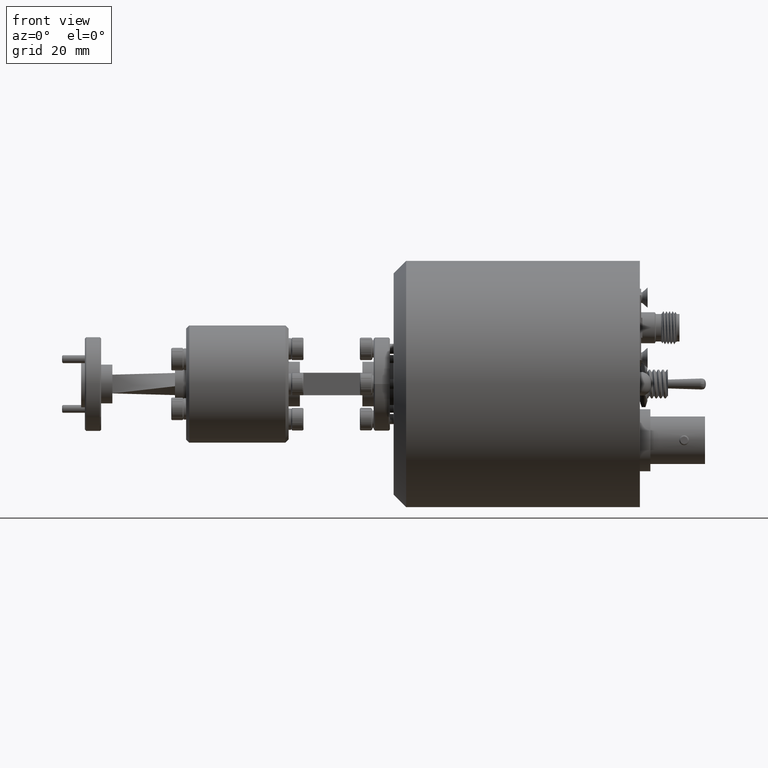
[diagram: clean part render]
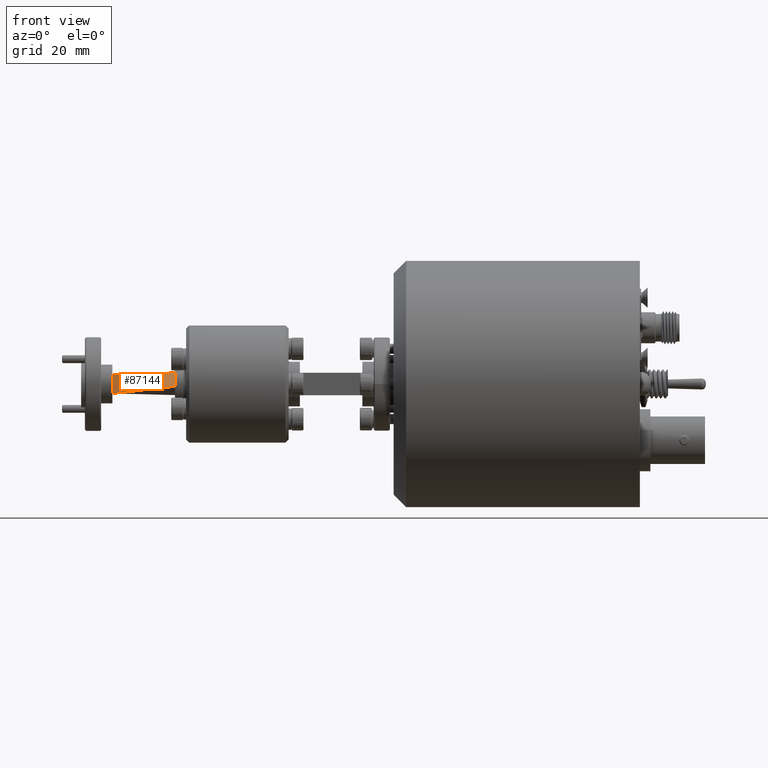
[diagram: same view with one face highlighted and labeled with its STEP entity id]
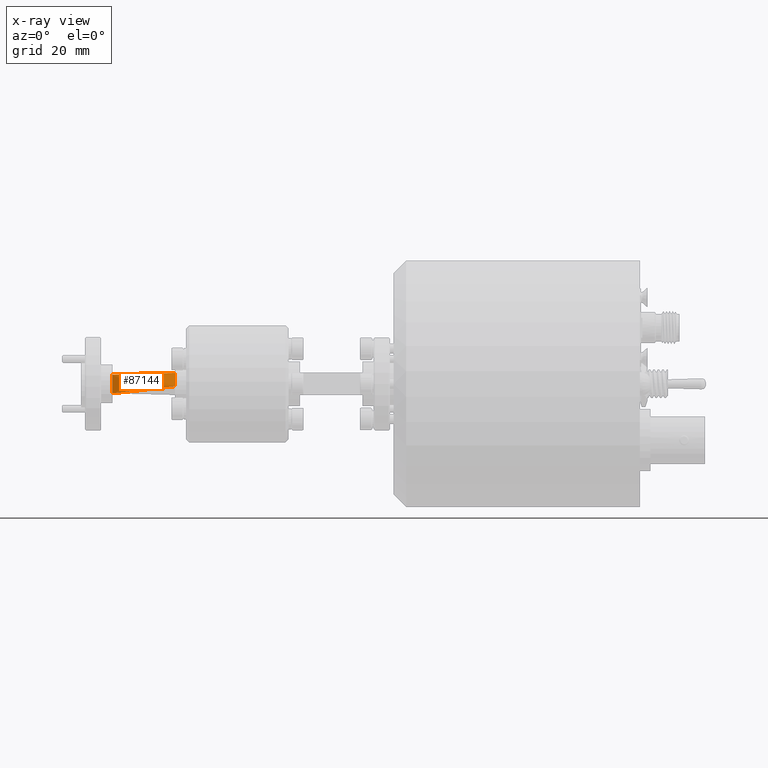
[diagram: x-ray of the same camera — body ghosted, the highlighted face saturated]
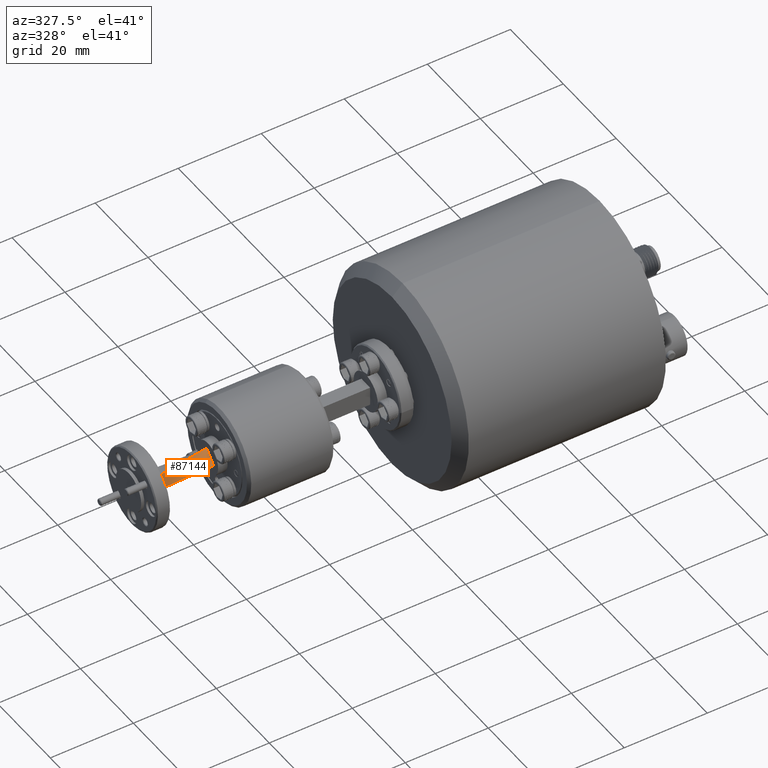
[diagram: same view with one face highlighted and labeled with its STEP entity id]
A machine part, front view. The second image highlights one B-rep face of the part: STEP entity #87144.
The next image is the same camera in x-ray: the body ghosted, the highlighted face saturated — about 0% of this face is hidden behind the body in this view.
A second angle (auxiliary view) of the same face is appended — the face is thin or edge-on in the first view.
In plain terms, the highlighted face is a freeform B-spline surface patch.
Its self-contained STEP definition (entity closure, byte-faithful):
#1926 = CARTESIAN_POINT ( 'NONE',  ( -52.63379760036607300, 33.51858904316352300, 38.52754942233121200 ) ) ;
#2277 = VECTOR ( 'NONE', #62967, 1000.000000000000000 ) ;
#2297 = ORIENTED_EDGE ( 'NONE', *, *, #86919, .T. ) ;
#8689 = CARTESIAN_POINT ( 'NONE',  ( -46.28379760036606400, 33.03105702802985600, 35.44554301930448000 ) ) ;
#10781 = CARTESIAN_POINT ( 'NONE',  ( -39.93379760036605600, 32.99253781894965700, 36.62254942233119700 ) ) ;
#13656 = LINE ( 'NONE', #46552, #2277 ) ;
#15670 = CARTESIAN_POINT ( 'NONE',  ( -52.63379760036607300, 33.51858904316351600, 34.71754942233121000 ) ) ;
#17932 = VECTOR ( 'NONE', #30728, 1000.000000000000100 ) ;
#23260 = CARTESIAN_POINT ( 'NONE',  ( -39.93379760036605600, 32.54352501289619700, 36.17353661627774400 ) ) ;
#23289 = VERTEX_POINT ( 'NONE', #64051 ) ;
#26221 = CARTESIAN_POINT ( 'NONE',  ( -46.28379760036606400, 34.37809544619023700, 38.69758143746484100 ) ) ;
#26728 = CARTESIAN_POINT ( 'NONE',  ( -52.63379760036607300, 33.51858904316351600, 34.71754942233121000 ) ) ;
#28524 = ORIENTED_EDGE ( 'NONE', *, *, #85025, .T. ) ;
#30728 = DIRECTION ( 'NONE',  ( 1.259566889871041000E-015, 0.7071067811865493500, 0.7071067811865455700 ) ) ;
#34906 = CARTESIAN_POINT ( 'NONE',  ( -52.63379760036607300, 33.51858904316351600, 35.35254942233120800 ) ) ;
#35600 = CARTESIAN_POINT ( 'NONE',  ( -52.63379760036607300, 33.51858904316351600, 35.98754942233121300 ) ) ;
#37125 = FACE_OUTER_BOUND ( 'NONE', #53720, .T. ) ;
#37275 = EDGE_CURVE ( 'NONE', #47070, #23289, #80633, .T. ) ;
#43701 = CARTESIAN_POINT ( 'NONE',  ( -39.93379760036605600, 34.33957623711003000, 37.96958784049156300 ) ) ;
#44034 = CARTESIAN_POINT ( 'NONE',  ( -39.93379760036605600, 35.23760184921694400, 38.86761345259848400 ) ) ;
#44924 = B_SPLINE_SURFACE_WITH_KNOTS ( 'NONE', 3, 1, ( 
 ( #67894, #26728 ),
 ( #10781, #34906 ),
 ( #84131, #35600 ),
 ( #43701, #84472 ),
 ( #92589, #58661 ),
 ( #44034, #1926 ) ),
 .UNSPECIFIED., .F., .F., .F.,
 ( 4, 2, 4 ),
 ( 2, 2 ),
 ( 0.0000000000000000000, 0.5000000000000000000, 1.000000000000000000 ),
 ( 0.0000000000000000000, 1.000000000000000000 ),
 .UNSPECIFIED. ) ;
#45330 = VERTEX_POINT ( 'NONE', #77837 ) ;
#46028 = LINE ( 'NONE', #8689, #60035 ) ;
#46552 = CARTESIAN_POINT ( 'NONE',  ( -52.63379760036607300, 33.51858904316351600, 34.71754942233121000 ) ) ;
#47070 = VERTEX_POINT ( 'NONE', #85172 ) ;
#47608 = VECTOR ( 'NONE', #58851, 1000.000000000000100 ) ;
#53720 = EDGE_LOOP ( 'NONE', ( #28524, #63564, #85990, #2297 ) ) ;
#58661 = CARTESIAN_POINT ( 'NONE',  ( -52.63379760036607300, 33.51858904316351600, 37.89254942233120700 ) ) ;
#58851 = DIRECTION ( 'NONE',  ( -0.9906147672477947400, -0.1340849976979996100, -0.02652538977894154000 ) ) ;
#60035 = VECTOR ( 'NONE', #81384, 1000.000000000000000 ) ;
#62967 = DIRECTION ( 'NONE',  ( 1.345045177614309200E-015, 9.436895709313828600E-016, 1.000000000000000000 ) ) ;
#63564 = ORIENTED_EDGE ( 'NONE', *, *, #37275, .T. ) ;
#64051 = CARTESIAN_POINT ( 'NONE',  ( -52.63379760036607300, 33.51858904316351600, 38.52754942233121200 ) ) ;
#67894 = CARTESIAN_POINT ( 'NONE',  ( -39.93379760036605600, 32.54352501289619700, 36.17353661627774400 ) ) ;
#75922 = EDGE_CURVE ( 'NONE', #90250, #23289, #13656, .T. ) ;
#77837 = CARTESIAN_POINT ( 'NONE',  ( -39.93379760036605600, 32.54352501289619700, 36.17353661627774400 ) ) ;
#80633 = LINE ( 'NONE', #26221, #47608 ) ;
#81384 = DIRECTION ( 'NONE',  ( 0.9906147672477944000, -0.07605612814133526400, 0.1135686941139457500 ) ) ;
#83824 = LINE ( 'NONE', #23260, #17932 ) ;
#84131 = CARTESIAN_POINT ( 'NONE',  ( -39.93379760036605600, 33.44155062500311000, 37.07156222838465700 ) ) ;
#84472 = CARTESIAN_POINT ( 'NONE',  ( -52.63379760036607300, 33.51858904316351600, 37.25754942233120900 ) ) ;
#85025 = EDGE_CURVE ( 'NONE', #45330, #47070, #83824, .T. ) ;
#85172 = CARTESIAN_POINT ( 'NONE',  ( -39.93379760036605600, 35.23760184921694400, 38.86761345259848400 ) ) ;
#85990 = ORIENTED_EDGE ( 'NONE', *, *, #75922, .F. ) ;
#86919 = EDGE_CURVE ( 'NONE', #90250, #45330, #46028, .T. ) ;
#87144 = ADVANCED_FACE ( 'NONE', ( #37125 ), #44924, .T. ) ;
#90250 = VERTEX_POINT ( 'NONE', #15670 ) ;
#92589 = CARTESIAN_POINT ( 'NONE',  ( -39.93379760036605600, 34.78858904316349100, 38.41860064654502300 ) ) ;